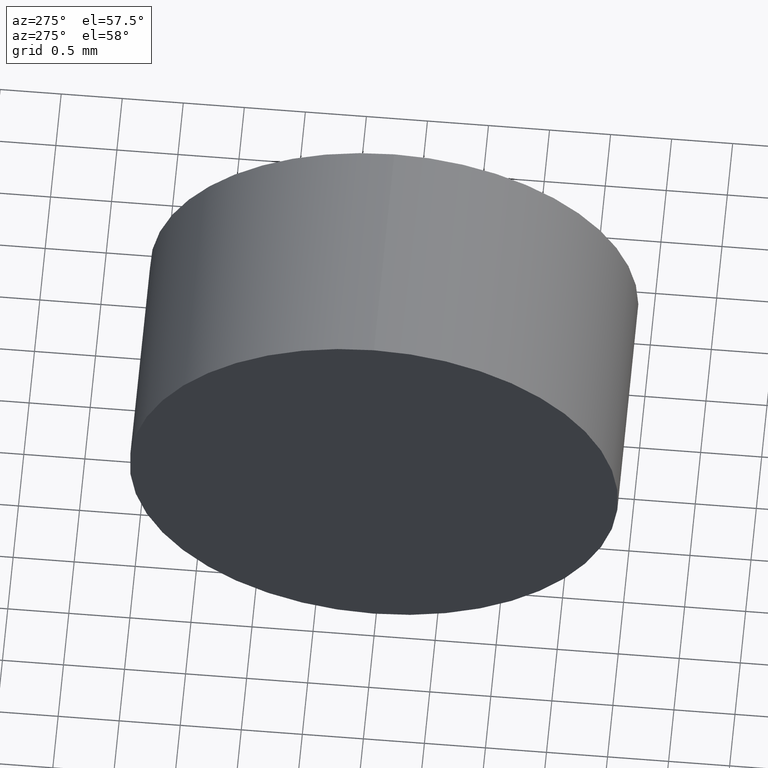
[diagram: clean part render]
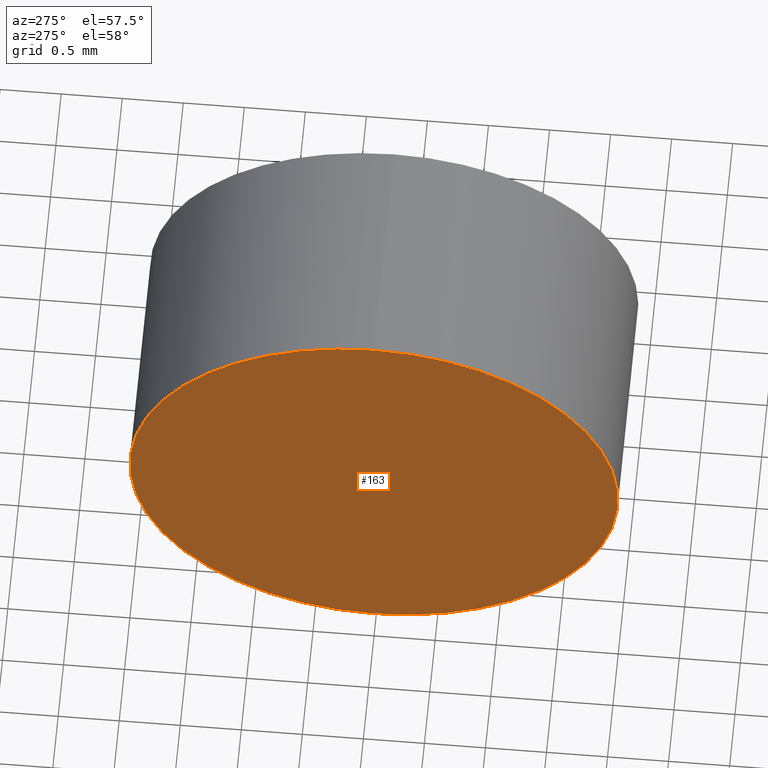
[diagram: same view with one face highlighted and labeled with its STEP entity id]
A machine part, auxiliary view. The second image highlights one B-rep face of the part: STEP entity #163.
In plain terms, the highlighted planar face has unit normal (1, 0, 0).
Its self-contained STEP definition (entity closure, byte-faithful):
#11 = AXIS2_PLACEMENT_3D ( 'NONE', #137, #73, #71 ) ;
#17 = EDGE_LOOP ( 'NONE', ( #169, #53 ) ) ;
#33 = CIRCLE ( 'NONE', #86, 2.000000000000000900 ) ;
#45 = CARTESIAN_POINT ( 'NONE',  ( 11.15698987586548600, 6.515563045701520100, 2.000000000000000900 ) ) ;
#53 = ORIENTED_EDGE ( 'NONE', *, *, #111, .T. ) ;
#59 = CARTESIAN_POINT ( 'NONE',  ( 11.15698987586548600, 6.515563045701520100, 0.0000000000000000000 ) ) ;
#64 = CIRCLE ( 'NONE', #121, 2.000000000000000900 ) ;
#71 = DIRECTION ( 'NONE',  ( 0.0000000000000000000, 0.0000000000000000000, -1.000000000000000000 ) ) ;
#73 = DIRECTION ( 'NONE',  ( 1.000000000000000000, 0.0000000000000000000, 0.0000000000000000000 ) ) ;
#86 = AXIS2_PLACEMENT_3D ( 'NONE', #113, #110, #87 ) ;
#87 = DIRECTION ( 'NONE',  ( 0.0000000000000000000, 0.0000000000000000000, 1.000000000000000000 ) ) ;
#104 = EDGE_CURVE ( 'NONE', #118, #123, #33, .T. ) ;
#110 = DIRECTION ( 'NONE',  ( -1.000000000000000000, -0.0000000000000000000, -0.0000000000000000000 ) ) ;
#111 = EDGE_CURVE ( 'NONE', #123, #118, #64, .T. ) ;
#113 = CARTESIAN_POINT ( 'NONE',  ( 11.15698987586548600, 6.515563045701520100, 0.0000000000000000000 ) ) ;
#118 = VERTEX_POINT ( 'NONE', #45 ) ;
#121 = AXIS2_PLACEMENT_3D ( 'NONE', #59, #154, #127 ) ;
#123 = VERTEX_POINT ( 'NONE', #128 ) ;
#127 = DIRECTION ( 'NONE',  ( 0.0000000000000000000, 0.0000000000000000000, 1.000000000000000000 ) ) ;
#128 = CARTESIAN_POINT ( 'NONE',  ( 11.15698987586548600, 6.515563045701520100, -2.000000000000000900 ) ) ;
#137 = CARTESIAN_POINT ( 'NONE',  ( 11.15698987586548600, 6.515563045701520100, 0.0000000000000000000 ) ) ;
#154 = DIRECTION ( 'NONE',  ( -1.000000000000000000, -0.0000000000000000000, -0.0000000000000000000 ) ) ;
#163 = ADVANCED_FACE ( 'NONE', ( #180 ), #168, .F. ) ;
#168 = PLANE ( 'NONE',  #11 ) ;
#169 = ORIENTED_EDGE ( 'NONE', *, *, #104, .T. ) ;
#180 = FACE_OUTER_BOUND ( 'NONE', #17, .T. ) ;